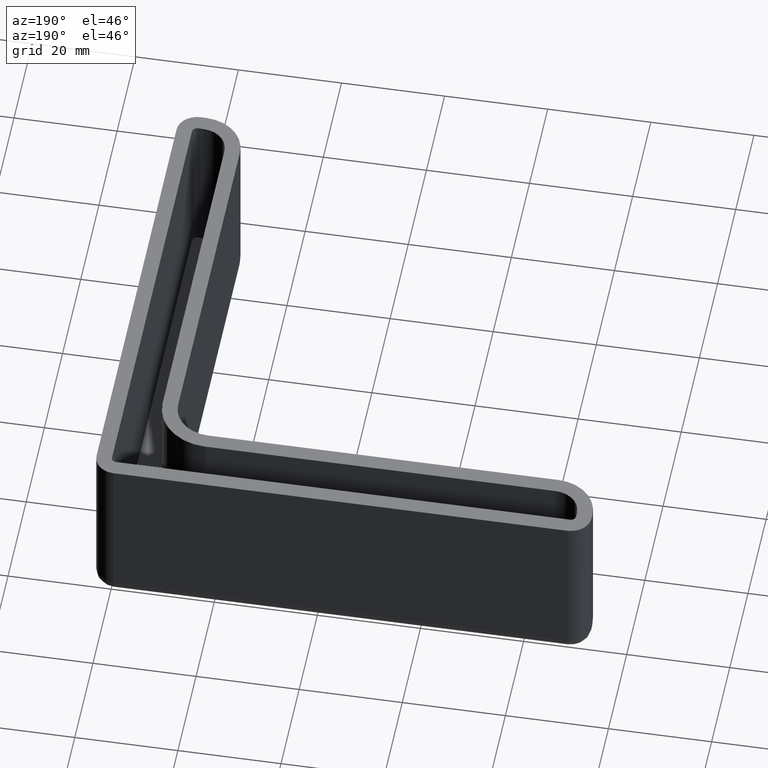
[diagram: clean part render]
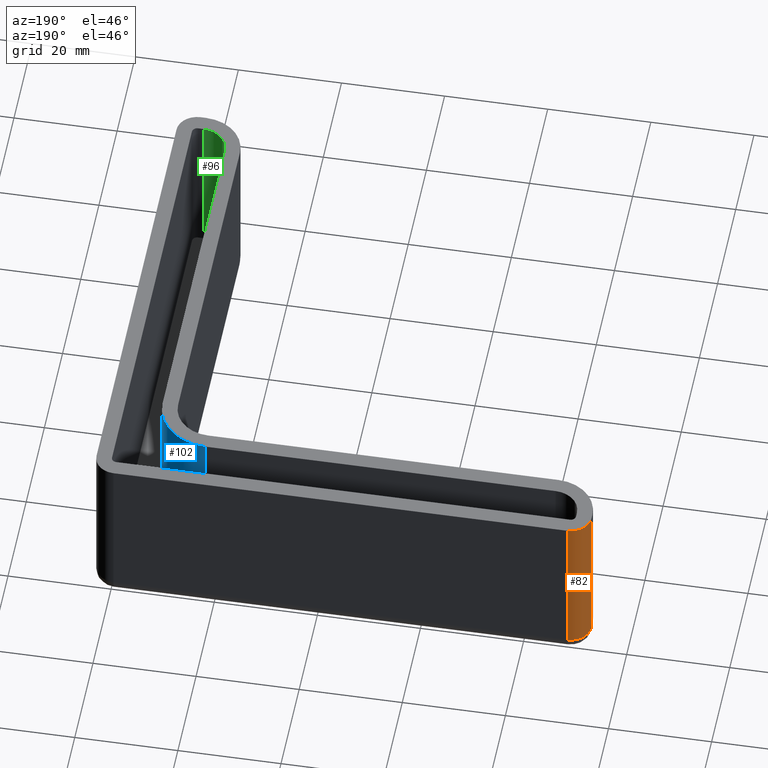
[diagram: same view with three faces highlighted in distinct colors, each labeled with its STEP entity id]
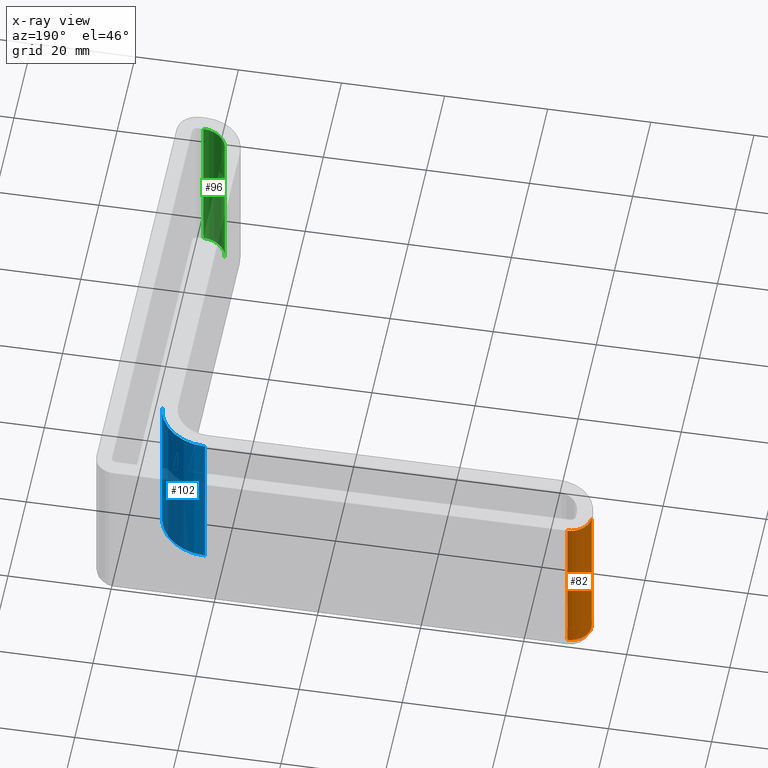
[diagram: x-ray of the same camera — body ghosted, the three highlighted faces saturated]
A machine part, auxiliary view with three faces highlighted in distinct colors.
The next image is the same camera in x-ray (body ghosted, the three faces saturated) — at least one of them is partly hidden behind the body in this view.
Their STEP definitions:

[orange] entity #82 — the highlighted cylindrical surface (edge-blend (fillet) strip) has radius 4 mm, axis along (-0, 0, -1).
#82 = ADVANCED_FACE( '', ( #129 ), #130, .T. );
#129 = FACE_OUTER_BOUND( '', #223, .T. );
#130 = CYLINDRICAL_SURFACE( '', #224, 4.00000000000000 );
#223 = EDGE_LOOP( '', ( #372, #373, #374, #375 ) );
#224 = AXIS2_PLACEMENT_3D( '', #376, #377, #378 );
#372 = ORIENTED_EDGE( '', *, *, #645, .F. );
#373 = ORIENTED_EDGE( '', *, *, #649, .T. );
#374 = ORIENTED_EDGE( '', *, *, #650, .T. );
#375 = ORIENTED_EDGE( '', *, *, #651, .T. );
#376 = CARTESIAN_POINT( '', ( -89.0000000000000, -0.999999999999987, -30.0000000000000 ) );
#377 = DIRECTION( '', ( -3.58678896750441E-017, 8.65927457071935E-017, -1.00000000000000 ) );
#378 = DIRECTION( '', ( -0.707106781186552, 0.707106781186543, 8.65927457071933E-017 ) );
#645 = EDGE_CURVE( '', #722, #762, #766, .T. );
#649 = EDGE_CURVE( '', #722, #772, #773, .T. );
#650 = EDGE_CURVE( '', #772, #774, #775, .T. );
#651 = EDGE_CURVE( '', #774, #762, #776, .T. );
#722 = VERTEX_POINT( '', #880 );
#762 = VERTEX_POINT( '', #932 );
#766 = CIRCLE( '', #936, 4.00000000000000 );
#772 = VERTEX_POINT( '', #944 );
#773 = LINE( '', #945, #946 );
#774 = VERTEX_POINT( '', #947 );
#775 = CIRCLE( '', #948, 4.00000000000000 );
#776 = LINE( '', #949, #950 );
#880 = CARTESIAN_POINT( '', ( -93.0000000000000, -0.999999999999987, -30.0000000000000 ) );
#932 = CARTESIAN_POINT( '', ( -89.0000000000000, 3.00000000000001, -30.0000000000000 ) );
#936 = AXIS2_PLACEMENT_3D( '', #1133, #1134, #1135 );
#944 = CARTESIAN_POINT( '', ( -93.0000000000000, -0.999999999999994, 1.55454010353138E-015 ) );
#945 = CARTESIAN_POINT( '', ( -93.0000000000000, -0.999999999999987, -30.0000000000000 ) );
#946 = VECTOR( '', #1141, 1000.00000000000 );
#947 = CARTESIAN_POINT( '', ( -89.0000000000000, 3.00000000000001, 2.24728206918893E-015 ) );
#948 = AXIS2_PLACEMENT_3D( '', #1142, #1143, #1144 );
#949 = CARTESIAN_POINT( '', ( -89.0000000000000, 3.00000000000001, -30.0000000000000 ) );
#950 = VECTOR( '', #1145, 1000.00000000000 );
#1133 = CARTESIAN_POINT( '', ( -89.0000000000000, -0.999999999999987, -30.0000000000000 ) );
#1134 = DIRECTION( '', ( -3.58678896750442E-017, 8.65927457071936E-017, -1.00000000000000 ) );
#1135 = DIRECTION( '', ( -0.707106781186547, 0.707106781186548, 8.65927457071936E-017 ) );
#1141 = DIRECTION( '', ( 3.58678896750442E-017, -8.65927457071936E-017, 1.00000000000000 ) );
#1142 = CARTESIAN_POINT( '', ( -89.0000000000000, -0.999999999999994, 1.90091108636016E-015 ) );
#1143 = DIRECTION( '', ( -3.58678896750441E-017, 8.65927457071935E-017, -1.00000000000000 ) );
#1144 = DIRECTION( '', ( -0.707106781186552, 0.707106781186543, 8.65927457071933E-017 ) );
#1145 = DIRECTION( '', ( -3.58678896750442E-017, 8.65927457071936E-017, -1.00000000000000 ) );

[blue] entity #102 — the highlighted cylindrical surface (partial cylindrical patch) has radius 10 mm, axis along (-0, 0, -1).
#102 = ADVANCED_FACE( '', ( #170 ), #171, .T. );
#170 = FACE_OUTER_BOUND( '', #294, .T. );
#171 = CYLINDRICAL_SURFACE( '', #295, 10.0000000000000 );
#294 = EDGE_LOOP( '', ( #534, #535, #536, #537 ) );
#295 = AXIS2_PLACEMENT_3D( '', #538, #539, #540 );
#534 = ORIENTED_EDGE( '', *, *, #666, .T. );
#535 = ORIENTED_EDGE( '', *, *, #702, .T. );
#536 = ORIENTED_EDGE( '', *, *, #637, .T. );
#537 = ORIENTED_EDGE( '', *, *, #708, .T. );
#538 = CARTESIAN_POINT( '', ( -17.0000000000000, -17.0000000000000, -30.0000000000000 ) );
#539 = DIRECTION( '', ( -3.58678896750442E-017, 8.65927457071936E-017, -1.00000000000000 ) );
#540 = DIRECTION( '', ( 0.707106781186547, 0.707106781186548, 3.58678896750442E-017 ) );
#637 = EDGE_CURVE( '', #752, #750, #753, .T. );
#666 = EDGE_CURVE( '', #803, #804, #805, .T. );
#702 = EDGE_CURVE( '', #804, #752, #858, .T. );
#708 = EDGE_CURVE( '', #750, #803, #864, .T. );
#750 = VERTEX_POINT( '', #916 );
#752 = VERTEX_POINT( '', #919 );
#753 = CIRCLE( '', #920, 10.0000000000000 );
#803 = VERTEX_POINT( '', #986 );
#804 = VERTEX_POINT( '', #987 );
#805 = CIRCLE( '', #988, 10.0000000000000 );
#858 = LINE( '', #1056, #1057 );
#864 = LINE( '', #1068, #1069 );
#916 = CARTESIAN_POINT( '', ( -17.0000000000000, -6.99999999999999, -30.0000000000000 ) );
#919 = CARTESIAN_POINT( '', ( -7.00000000000002, -17.0000000000000, -30.0000000000000 ) );
#920 = AXIS2_PLACEMENT_3D( '', #1115, #1116, #1117 );
#986 = CARTESIAN_POINT( '', ( -17.0000000000000, -6.99999999999999, 6.77138399127705E-016 ) );
#987 = CARTESIAN_POINT( '', ( -7.00000000000001, -17.0000000000000, -2.79230855282591E-015 ) );
#988 = AXIS2_PLACEMENT_3D( '', #1170, #1171, #1172 );
#1056 = CARTESIAN_POINT( '', ( -7.00000000000002, -17.0000000000000, -30.0000000000000 ) );
#1057 = VECTOR( '', #1248, 1000.00000000000 );
#1068 = CARTESIAN_POINT( '', ( -17.0000000000000, -6.99999999999999, -30.0000000000000 ) );
#1069 = VECTOR( '', #1254, 1000.00000000000 );
#1115 = CARTESIAN_POINT( '', ( -17.0000000000000, -17.0000000000000, -30.0000000000000 ) );
#1116 = DIRECTION( '', ( 3.58678896750442E-017, -8.65927457071936E-017, 1.00000000000000 ) );
#1117 = DIRECTION( '', ( 0.707106781186547, 0.707106781186548, 3.58678896750442E-017 ) );
#1170 = CARTESIAN_POINT( '', ( -17.0000000000000, -17.0000000000000, -1.88789057944231E-016 ) );
#1171 = DIRECTION( '', ( -3.58678896750442E-017, 8.65927457071936E-017, -1.00000000000000 ) );
#1172 = DIRECTION( '', ( 0.707106781186547, 0.707106781186548, 3.58678896750442E-017 ) );
#1248 = DIRECTION( '', ( -3.58678896750442E-017, 8.65927457071936E-017, -1.00000000000000 ) );
#1254 = DIRECTION( '', ( 3.58678896750442E-017, -8.65927457071936E-017, 1.00000000000000 ) );

[green] entity #96 — the highlighted cylindrical surface (edge-blend (fillet) strip) has radius 5 mm, axis along (-0, 0, -1).
#96 = ADVANCED_FACE( '', ( #158 ), #159, .F. );
#158 = FACE_OUTER_BOUND( '', #282, .T. );
#159 = CYLINDRICAL_SURFACE( '', #283, 5.00000000000000 );
#282 = EDGE_LOOP( '', ( #492, #493, #494, #495 ) );
#283 = AXIS2_PLACEMENT_3D( '', #496, #497, #498 );
#492 = ORIENTED_EDGE( '', *, *, #639, .F. );
#493 = ORIENTED_EDGE( '', *, *, #700, .T. );
#494 = ORIENTED_EDGE( '', *, *, #674, .T. );
#495 = ORIENTED_EDGE( '', *, *, #701, .T. );
#496 = CARTESIAN_POINT( '', ( -2.00000000000002, -85.0000000000000, -30.0000000000000 ) );
#497 = DIRECTION( '', ( -3.58678896750442E-017, 8.65927457071936E-017, -1.00000000000000 ) );
#498 = DIRECTION( '', ( -0.707106781186547, -0.707106781186548, -3.58678896750442E-017 ) );
#639 = EDGE_CURVE( '', #754, #756, #757, .T. );
#674 = EDGE_CURVE( '', #819, #817, #820, .T. );
#700 = EDGE_CURVE( '', #754, #819, #856, .T. );
#701 = EDGE_CURVE( '', #817, #756, #857, .T. );
#754 = VERTEX_POINT( '', #921 );
#756 = VERTEX_POINT( '', #924 );
#757 = CIRCLE( '', #925, 5.00000000000000 );
#817 = VERTEX_POINT( '', #1003 );
#819 = VERTEX_POINT( '', #1006 );
#820 = CIRCLE( '', #1007, 5.00000000000000 );
#856 = LINE( '', #1052, #1053 );
#857 = LINE( '', #1054, #1055 );
#921 = CARTESIAN_POINT( '', ( -7.00000000000001, -85.0000000000000, -30.0000000000000 ) );
#924 = CARTESIAN_POINT( '', ( -2.00000000000002, -90.0000000000000, -30.0000000000000 ) );
#925 = AXIS2_PLACEMENT_3D( '', #1119, #1120, #1121 );
#1003 = CARTESIAN_POINT( '', ( -2.00000000000002, -90.0000000000000, -8.68061526091507E-015 ) );
#1006 = CARTESIAN_POINT( '', ( -7.00000000000002, -85.0000000000000, -8.68061526091507E-015 ) );
#1007 = AXIS2_PLACEMENT_3D( '', #1186, #1187, #1188 );
#1052 = CARTESIAN_POINT( '', ( -7.00000000000001, -85.0000000000000, -30.0000000000000 ) );
#1053 = VECTOR( '', #1246, 1000.00000000000 );
#1054 = CARTESIAN_POINT( '', ( -2.00000000000002, -90.0000000000000, -30.0000000000000 ) );
#1055 = VECTOR( '', #1247, 1000.00000000000 );
#1119 = CARTESIAN_POINT( '', ( -2.00000000000002, -85.0000000000000, -30.0000000000000 ) );
#1120 = DIRECTION( '', ( 3.58678896750442E-017, -8.65927457071936E-017, 1.00000000000000 ) );
#1121 = DIRECTION( '', ( -0.707106781186547, -0.707106781186548, -3.58678896750442E-017 ) );
#1186 = CARTESIAN_POINT( '', ( -2.00000000000001, -85.0000000000000, -8.24765153237910E-015 ) );
#1187 = DIRECTION( '', ( 3.58678896750442E-017, -8.65927457071936E-017, 1.00000000000000 ) );
#1188 = DIRECTION( '', ( -0.707106781186547, -0.707106781186548, -3.58678896750442E-017 ) );
#1246 = DIRECTION( '', ( 3.58678896750442E-017, -8.65927457071936E-017, 1.00000000000000 ) );
#1247 = DIRECTION( '', ( -3.58678896750442E-017, 8.65927457071936E-017, -1.00000000000000 ) );